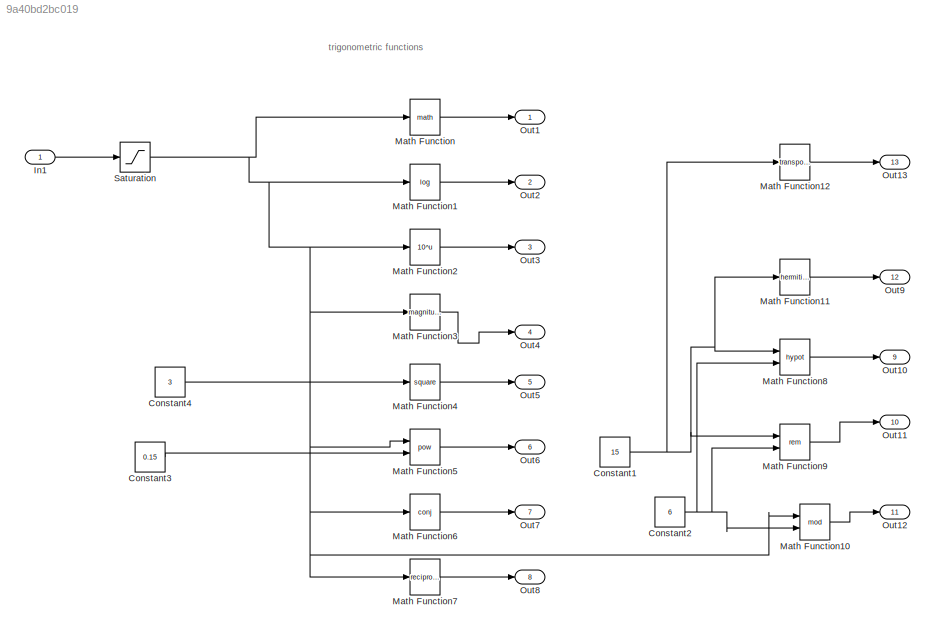
MODEL slx_9a40bd2bc019
KIND model
CONFIG AbsTol = auto
CONFIG EnableMultiTasking = on
CONFIG FixedStep = 0.1
CONFIG MaxStep = auto
CONFIG MinStep = auto
CONFIG RelTol = 1e-3
CONFIG SampleTimeConstraint = Unconstrained
CONFIG Solver = FixedStepAuto
CONFIG SolverName = FixedStepAuto
CONFIG StartTime = 0.0
CONFIG StopTime = 10.0
BLOCK [Constant] Constant1
  OutDataTypeStr = double
  Value = 15
BLOCK [Constant] Constant2
  OutDataTypeStr = double
  Value = 6
BLOCK [Constant] Constant3
  Value = 0.15
BLOCK [Constant] Constant4
  Value = 3
BLOCK [Inport] In1
  IconDisplay = Port number
BLOCK [Math] Math Function
  Ports = [1, 1]
BLOCK [Math] Math Function1
  Operator = log
  Ports = [1, 1]
BLOCK [Math] Math Function10
  Operator = mod
  Ports = [2, 1]
BLOCK [Math] Math Function11
  Operator = hermitian
  Ports = [1, 1]
BLOCK [Math] Math Function12
  Operator = transpose
  Ports = [1, 1]
BLOCK [Math] Math Function2
  Operator = 10^u
  Ports = [1, 1]
BLOCK [Math] Math Function3
  Operator = magnitude^2
  Ports = [1, 1]
BLOCK [Math] Math Function4
  Operator = square
  OutDataTypeStr = int16
  Ports = [1, 1]
BLOCK [Math] Math Function5
  Operator = pow
  Ports = [2, 1]
BLOCK [Math] Math Function6
  Operator = conj
  Ports = [1, 1]
BLOCK [Math] Math Function7
  Operator = reciprocal
  Ports = [1, 1]
BLOCK [Math] Math Function8
  Operator = hypot
  Ports = [2, 1]
BLOCK [Math] Math Function9
  Operator = rem
  Ports = [2, 1]
BLOCK [Outport] Out1
  IconDisplay = Port number
BLOCK [Outport] Out10
  IconDisplay = Port number
  Port = 9
BLOCK [Outport] Out11
  IconDisplay = Port number
  Port = 10
BLOCK [Outport] Out12
  IconDisplay = Port number
  Port = 11
BLOCK [Outport] Out13
  IconDisplay = Port number
  Port = 13
BLOCK [Outport] Out2
  IconDisplay = Port number
  Port = 2
BLOCK [Outport] Out3
  IconDisplay = Port number
  Port = 3
BLOCK [Outport] Out4
  IconDisplay = Port number
  Port = 4
BLOCK [Outport] Out5
  IconDisplay = Port number
  Port = 5
BLOCK [Outport] Out6
  IconDisplay = Port number
  Port = 6
BLOCK [Outport] Out7
  IconDisplay = Port number
  Port = 7
BLOCK [Outport] Out8
  IconDisplay = Port number
  Port = 8
BLOCK [Outport] Out9
  IconDisplay = Port number
  Port = 12
BLOCK [Saturate] Saturation
  InputPortMap = u0
  LowerLimit = 0.5
  Ports = [1, 1]
  UpperLimit = 1.5
ANNOTATION (root): trigonometric functions
NET Constant1:1 -> Math Function11:1, Math Function12:1, Math Function8:1, Math Function9:1
NET Constant2:1 -> Math Function10:2, Math Function8:2, Math Function9:2
LINE Constant3:1 -> Math Function5:2
LINE Constant4:1 -> Math Function4:1
LINE In1:1 -> Saturation:1
LINE Math Function10:1 -> Out12:1
LINE Math Function11:1 -> Out9:1
LINE Math Function12:1 -> Out13:1
LINE Math Function1:1 -> Out2:1
LINE Math Function2:1 -> Out3:1
LINE Math Function3:1 -> Out4:1
LINE Math Function4:1 -> Out5:1
LINE Math Function5:1 -> Out6:1
LINE Math Function6:1 -> Out7:1
LINE Math Function7:1 -> Out8:1
LINE Math Function8:1 -> Out10:1
LINE Math Function9:1 -> Out11:1
LINE Math Function:1 -> Out1:1
NET Saturation:1 -> Math Function10:1, Math Function1:1, Math Function2:1, Math Function3:1, Math Function5:1, Math Function6:1, Math Function7:1, Math Function:1
note: NET lines group one-source signal fan-out (src -> all destinations, sorted); 1:1 wires keep LINE
